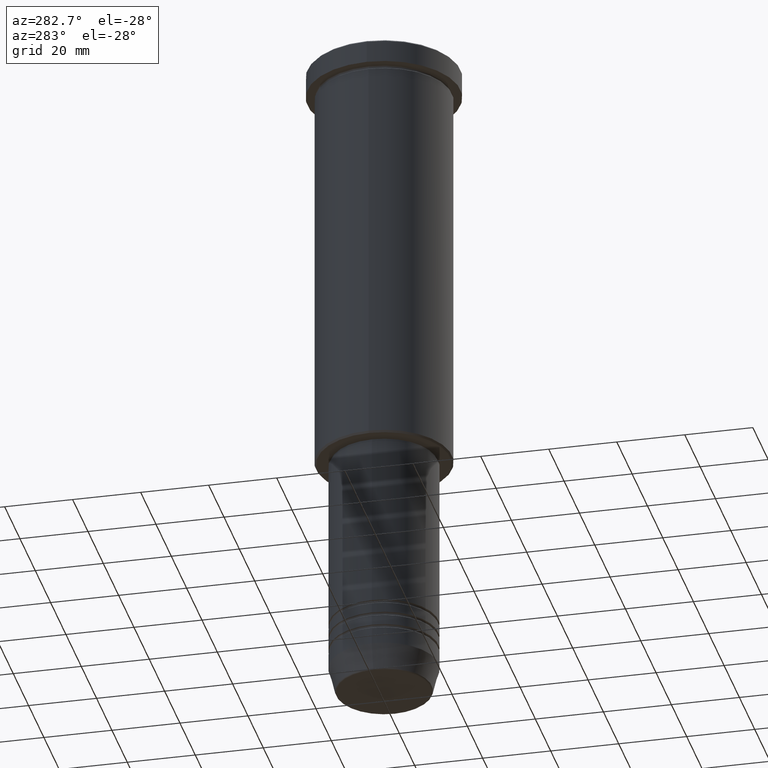
[diagram: clean part render]
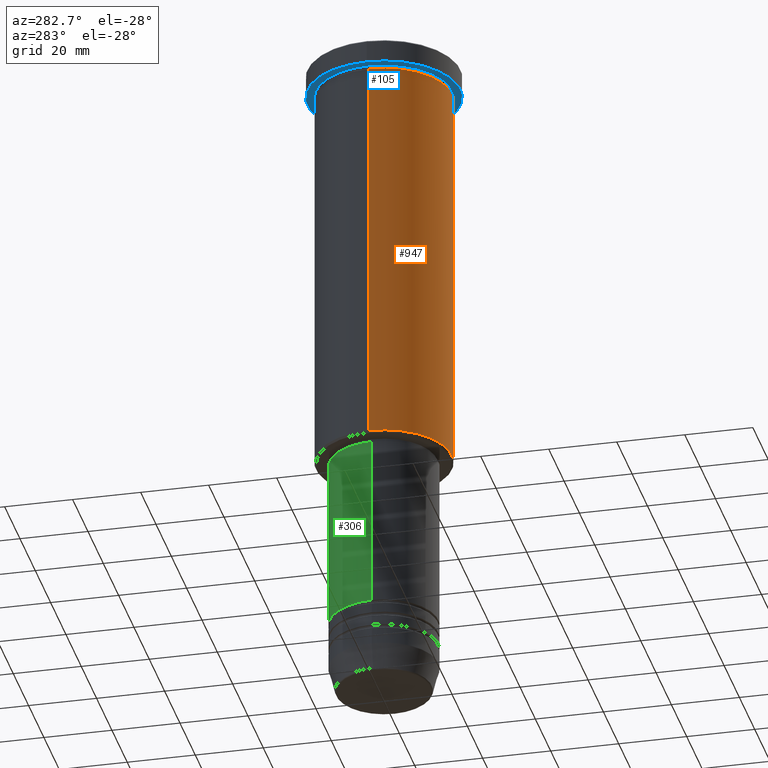
[diagram: same view with three faces highlighted in distinct colors, each labeled with its STEP entity id]
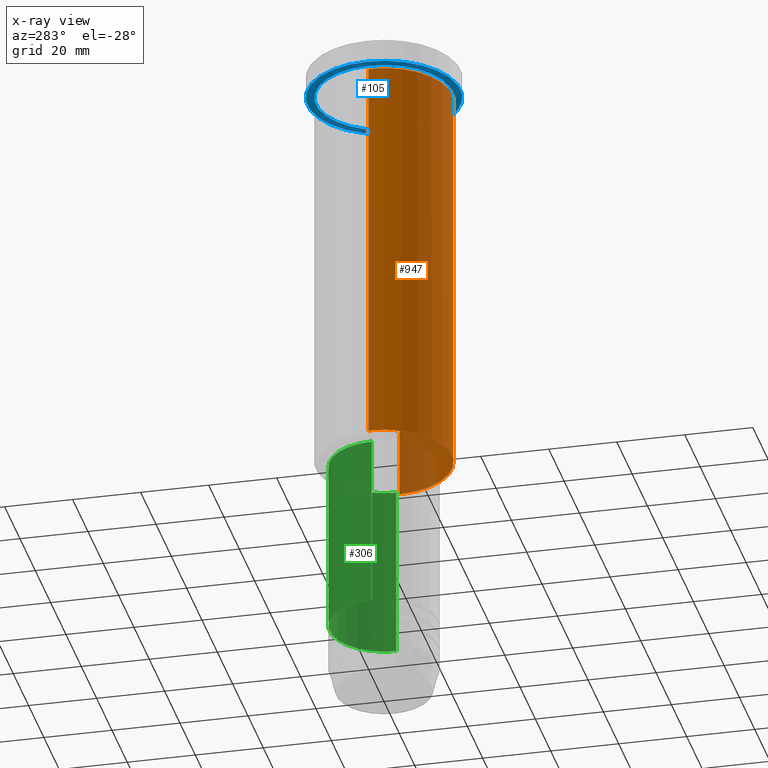
[diagram: x-ray of the same camera — body ghosted, the three highlighted faces saturated]
A machine part, auxiliary view with three faces highlighted in distinct colors.
The next image is the same camera in x-ray (body ghosted, the three faces saturated) — at least one of them is partly hidden behind the body in this view.
Their STEP definitions:

[orange] entity #947 — the highlighted cylindrical surface (partial cylindrical patch) has radius 20 mm, axis along (-0, -0, 1).
#48 = FACE_OUTER_BOUND ( 'NONE', #122, .T. ) ;
#76 = CARTESIAN_POINT ( 'NONE',  ( -20.00000000000000355, 2.449293598294706907E-15, -125.4999999999999716 ) ) ;
#103 = VECTOR ( 'NONE', #1052, 1000.000000000000000 ) ;
#111 = CARTESIAN_POINT ( 'NONE',  ( 20.00000000000000000, 0.000000000000000000, -7.999999999999994671 ) ) ;
#122 = EDGE_LOOP ( 'NONE', ( #556, #741, #643, #1171 ) ) ;
#173 = EDGE_CURVE ( 'NONE', #498, #426, #960, .T. ) ;
#201 = LINE ( 'NONE', #914, #663 ) ;
#320 = DIRECTION ( 'NONE',  ( -0.000000000000000000, -0.000000000000000000, 1.000000000000000000 ) ) ;
#332 = AXIS2_PLACEMENT_3D ( 'NONE', #1125, #755, #683 ) ;
#415 = CYLINDRICAL_SURFACE ( 'NONE', #869, 20.00000000000000355 ) ;
#419 = CARTESIAN_POINT ( 'NONE',  ( 0.000000000000000000, 0.000000000000000000, -7.999999999999994671 ) ) ;
#424 = DIRECTION ( 'NONE',  ( 1.000000000000000000, 0.000000000000000000, 0.000000000000000000 ) ) ;
#426 = VERTEX_POINT ( 'NONE', #111 ) ;
#429 = LINE ( 'NONE', #638, #103 ) ;
#447 = AXIS2_PLACEMENT_3D ( 'NONE', #419, #980, #1145 ) ;
#498 = VERTEX_POINT ( 'NONE', #1134 ) ;
#510 = EDGE_CURVE ( 'NONE', #710, #945, #1103, .T. ) ;
#511 = CARTESIAN_POINT ( 'NONE',  ( 20.00000000000000355, 0.000000000000000000, -125.4999999999999716 ) ) ;
#556 = ORIENTED_EDGE ( 'NONE', *, *, #1023, .F. ) ;
#638 = CARTESIAN_POINT ( 'NONE',  ( 20.00000000000000355, 0.000000000000000000, 0.000000000000000000 ) ) ;
#643 = ORIENTED_EDGE ( 'NONE', *, *, #1156, .T. ) ;
#663 = VECTOR ( 'NONE', #836, 1000.000000000000000 ) ;
#683 = DIRECTION ( 'NONE',  ( -1.000000000000000000, 0.000000000000000000, 0.000000000000000000 ) ) ;
#710 = VERTEX_POINT ( 'NONE', #76 ) ;
#741 = ORIENTED_EDGE ( 'NONE', *, *, #510, .T. ) ;
#755 = DIRECTION ( 'NONE',  ( -0.000000000000000000, -0.000000000000000000, 1.000000000000000000 ) ) ;
#836 = DIRECTION ( 'NONE',  ( -0.000000000000000000, -0.000000000000000000, 1.000000000000000000 ) ) ;
#869 = AXIS2_PLACEMENT_3D ( 'NONE', #1054, #320, #424 ) ;
#914 = CARTESIAN_POINT ( 'NONE',  ( -20.00000000000000355, 2.449293598294706907E-15, 0.000000000000000000 ) ) ;
#945 = VERTEX_POINT ( 'NONE', #511 ) ;
#947 = ADVANCED_FACE ( 'NONE', ( #48 ), #415, .T. ) ;
#960 = CIRCLE ( 'NONE', #447, 20.00000000000000000 ) ;
#980 = DIRECTION ( 'NONE',  ( -0.000000000000000000, -0.000000000000000000, 1.000000000000000000 ) ) ;
#1023 = EDGE_CURVE ( 'NONE', #710, #498, #201, .T. ) ;
#1052 = DIRECTION ( 'NONE',  ( -0.000000000000000000, -0.000000000000000000, 1.000000000000000000 ) ) ;
#1054 = CARTESIAN_POINT ( 'NONE',  ( 0.000000000000000000, 0.000000000000000000, 0.000000000000000000 ) ) ;
#1103 = CIRCLE ( 'NONE', #332, 20.00000000000000355 ) ;
#1125 = CARTESIAN_POINT ( 'NONE',  ( 0.000000000000000000, 0.000000000000000000, -125.4999999999999716 ) ) ;
#1134 = CARTESIAN_POINT ( 'NONE',  ( -20.00000000000000000, 2.449293598294706513E-15, -7.999999999999994671 ) ) ;
#1145 = DIRECTION ( 'NONE',  ( 1.000000000000000000, 0.000000000000000000, 0.000000000000000000 ) ) ;
#1156 = EDGE_CURVE ( 'NONE', #945, #426, #429, .T. ) ;
#1171 = ORIENTED_EDGE ( 'NONE', *, *, #173, .F. ) ;

[blue] entity #105 — the highlighted planar face has unit normal (0, 0, -1).
#2 = DIRECTION ( 'NONE',  ( -0.000000000000000000, -0.000000000000000000, 1.000000000000000000 ) ) ;
#29 = CARTESIAN_POINT ( 'NONE',  ( 0.000000000000000000, 0.000000000000000000, -6.999999999999995559 ) ) ;
#36 = EDGE_CURVE ( 'NONE', #338, #791, #342, .T. ) ;
#56 = CIRCLE ( 'NONE', #1180, 20.00000000000000000 ) ;
#69 = EDGE_LOOP ( 'NONE', ( #438, #707 ) ) ;
#84 = AXIS2_PLACEMENT_3D ( 'NONE', #147, #1057, #961 ) ;
#105 = ADVANCED_FACE ( 'NONE', ( #311, #1015 ), #1051, .T. ) ;
#125 = CARTESIAN_POINT ( 'NONE',  ( 20.00000000000000000, 2.449293598294706513E-15, -6.999999999999995559 ) ) ;
#147 = CARTESIAN_POINT ( 'NONE',  ( 0.000000000000000000, 22.50000000000000000, -6.999999999999995559 ) ) ;
#179 = AXIS2_PLACEMENT_3D ( 'NONE', #578, #1040, #496 ) ;
#199 = DIRECTION ( 'NONE',  ( -0.000000000000000000, -0.000000000000000000, 1.000000000000000000 ) ) ;
#260 = EDGE_CURVE ( 'NONE', #791, #338, #436, .T. ) ;
#269 = CARTESIAN_POINT ( 'NONE',  ( -22.50000000000000000, 2.755455298081544778E-15, -6.999999999999995559 ) ) ;
#297 = CARTESIAN_POINT ( 'NONE',  ( 22.50000000000000000, 0.000000000000000000, -6.999999999999995559 ) ) ;
#311 = FACE_BOUND ( 'NONE', #725, .T. ) ;
#318 = ORIENTED_EDGE ( 'NONE', *, *, #395, .T. ) ;
#338 = VERTEX_POINT ( 'NONE', #269 ) ;
#342 = CIRCLE ( 'NONE', #179, 22.50000000000000000 ) ;
#355 = AXIS2_PLACEMENT_3D ( 'NONE', #29, #199, #1014 ) ;
#395 = EDGE_CURVE ( 'NONE', #648, #727, #56, .T. ) ;
#436 = CIRCLE ( 'NONE', #500, 22.50000000000000000 ) ;
#438 = ORIENTED_EDGE ( 'NONE', *, *, #260, .F. ) ;
#463 = EDGE_CURVE ( 'NONE', #727, #648, #1062, .T. ) ;
#496 = DIRECTION ( 'NONE',  ( 1.000000000000000000, 0.000000000000000000, 0.000000000000000000 ) ) ;
#500 = AXIS2_PLACEMENT_3D ( 'NONE', #558, #2, #930 ) ;
#544 = CARTESIAN_POINT ( 'NONE',  ( 0.000000000000000000, 0.000000000000000000, -6.999999999999995559 ) ) ;
#558 = CARTESIAN_POINT ( 'NONE',  ( 0.000000000000000000, 0.000000000000000000, -6.999999999999995559 ) ) ;
#578 = CARTESIAN_POINT ( 'NONE',  ( 0.000000000000000000, 0.000000000000000000, -6.999999999999995559 ) ) ;
#631 = CARTESIAN_POINT ( 'NONE',  ( -20.00000000000000000, 0.000000000000000000, -6.999999999999995559 ) ) ;
#648 = VERTEX_POINT ( 'NONE', #631 ) ;
#707 = ORIENTED_EDGE ( 'NONE', *, *, #36, .F. ) ;
#725 = EDGE_LOOP ( 'NONE', ( #318, #1098 ) ) ;
#727 = VERTEX_POINT ( 'NONE', #125 ) ;
#791 = VERTEX_POINT ( 'NONE', #297 ) ;
#857 = DIRECTION ( 'NONE',  ( -1.000000000000000000, 0.000000000000000000, 0.000000000000000000 ) ) ;
#930 = DIRECTION ( 'NONE',  ( 1.000000000000000000, 0.000000000000000000, 0.000000000000000000 ) ) ;
#961 = DIRECTION ( 'NONE',  ( -1.000000000000000000, 0.000000000000000000, -0.000000000000000000 ) ) ;
#1014 = DIRECTION ( 'NONE',  ( -1.000000000000000000, 0.000000000000000000, 0.000000000000000000 ) ) ;
#1015 = FACE_OUTER_BOUND ( 'NONE', #69, .T. ) ;
#1020 = DIRECTION ( 'NONE',  ( -0.000000000000000000, -0.000000000000000000, 1.000000000000000000 ) ) ;
#1040 = DIRECTION ( 'NONE',  ( -0.000000000000000000, -0.000000000000000000, 1.000000000000000000 ) ) ;
#1051 = PLANE ( 'NONE',  #84 ) ;
#1057 = DIRECTION ( 'NONE',  ( 0.000000000000000000, 0.000000000000000000, -1.000000000000000000 ) ) ;
#1062 = CIRCLE ( 'NONE', #355, 20.00000000000000000 ) ;
#1098 = ORIENTED_EDGE ( 'NONE', *, *, #463, .T. ) ;
#1180 = AXIS2_PLACEMENT_3D ( 'NONE', #544, #1020, #857 ) ;

[green] entity #306 — the highlighted cylindrical surface (partial cylindrical patch) has radius 16 mm, axis along (-0, -0, 1).
#64 = CARTESIAN_POINT ( 'NONE',  ( 0.000000000000000000, 0.000000000000000000, -127.0000000000000000 ) ) ;
#75 = VERTEX_POINT ( 'NONE', #132 ) ;
#79 = ORIENTED_EDGE ( 'NONE', *, *, #1039, .T. ) ;
#80 = AXIS2_PLACEMENT_3D ( 'NONE', #64, #139, #254 ) ;
#113 = AXIS2_PLACEMENT_3D ( 'NONE', #1091, #659, #356 ) ;
#118 = AXIS2_PLACEMENT_3D ( 'NONE', #964, #149, #790 ) ;
#132 = CARTESIAN_POINT ( 'NONE',  ( -16.00000000000000000, 1.959434878635765131E-15, -127.0000000000000000 ) ) ;
#139 = DIRECTION ( 'NONE',  ( -0.000000000000000000, -0.000000000000000000, 1.000000000000000000 ) ) ;
#149 = DIRECTION ( 'NONE',  ( -0.000000000000000000, -0.000000000000000000, 1.000000000000000000 ) ) ;
#192 = VECTOR ( 'NONE', #1060, 1000.000000000000000 ) ;
#254 = DIRECTION ( 'NONE',  ( 1.000000000000000000, 0.000000000000000000, 0.000000000000000000 ) ) ;
#306 = ADVANCED_FACE ( 'NONE', ( #654 ), #651, .T. ) ;
#356 = DIRECTION ( 'NONE',  ( 1.000000000000000000, 0.000000000000000000, 0.000000000000000000 ) ) ;
#404 = LINE ( 'NONE', #972, #192 ) ;
#408 = ORIENTED_EDGE ( 'NONE', *, *, #674, .F. ) ;
#422 = VERTEX_POINT ( 'NONE', #860 ) ;
#451 = ORIENTED_EDGE ( 'NONE', *, *, #858, .T. ) ;
#465 = CIRCLE ( 'NONE', #80, 16.00000000000000000 ) ;
#647 = EDGE_CURVE ( 'NONE', #763, #75, #465, .T. ) ;
#651 = CYLINDRICAL_SURFACE ( 'NONE', #113, 16.00000000000000000 ) ;
#654 = FACE_OUTER_BOUND ( 'NONE', #681, .T. ) ;
#659 = DIRECTION ( 'NONE',  ( -0.000000000000000000, -0.000000000000000000, 1.000000000000000000 ) ) ;
#674 = EDGE_CURVE ( 'NONE', #422, #763, #404, .T. ) ;
#681 = EDGE_LOOP ( 'NONE', ( #451, #79, #981, #408 ) ) ;
#696 = CIRCLE ( 'NONE', #118, 16.00000000000000000 ) ;
#739 = CARTESIAN_POINT ( 'NONE',  ( -16.00000000000000000, 1.959434878635765131E-15, 0.000000000000000000 ) ) ;
#763 = VERTEX_POINT ( 'NONE', #1030 ) ;
#775 = VECTOR ( 'NONE', #1093, 1000.000000000000000 ) ;
#790 = DIRECTION ( 'NONE',  ( 1.000000000000000000, 0.000000000000000000, 0.000000000000000000 ) ) ;
#858 = EDGE_CURVE ( 'NONE', #422, #1141, #696, .T. ) ;
#860 = CARTESIAN_POINT ( 'NONE',  ( 16.00000000000000000, 0.000000000000000000, -178.5000000000000284 ) ) ;
#919 = LINE ( 'NONE', #739, #775 ) ;
#964 = CARTESIAN_POINT ( 'NONE',  ( 0.000000000000000000, 0.000000000000000000, -178.5000000000000284 ) ) ;
#972 = CARTESIAN_POINT ( 'NONE',  ( 16.00000000000000000, 0.000000000000000000, 0.000000000000000000 ) ) ;
#981 = ORIENTED_EDGE ( 'NONE', *, *, #647, .F. ) ;
#1030 = CARTESIAN_POINT ( 'NONE',  ( 16.00000000000000000, 0.000000000000000000, -127.0000000000000000 ) ) ;
#1039 = EDGE_CURVE ( 'NONE', #1141, #75, #919, .T. ) ;
#1060 = DIRECTION ( 'NONE',  ( -0.000000000000000000, -0.000000000000000000, 1.000000000000000000 ) ) ;
#1072 = CARTESIAN_POINT ( 'NONE',  ( -16.00000000000000000, 1.959434878635765131E-15, -178.5000000000000284 ) ) ;
#1091 = CARTESIAN_POINT ( 'NONE',  ( 0.000000000000000000, 0.000000000000000000, 0.000000000000000000 ) ) ;
#1093 = DIRECTION ( 'NONE',  ( -0.000000000000000000, -0.000000000000000000, 1.000000000000000000 ) ) ;
#1141 = VERTEX_POINT ( 'NONE', #1072 ) ;